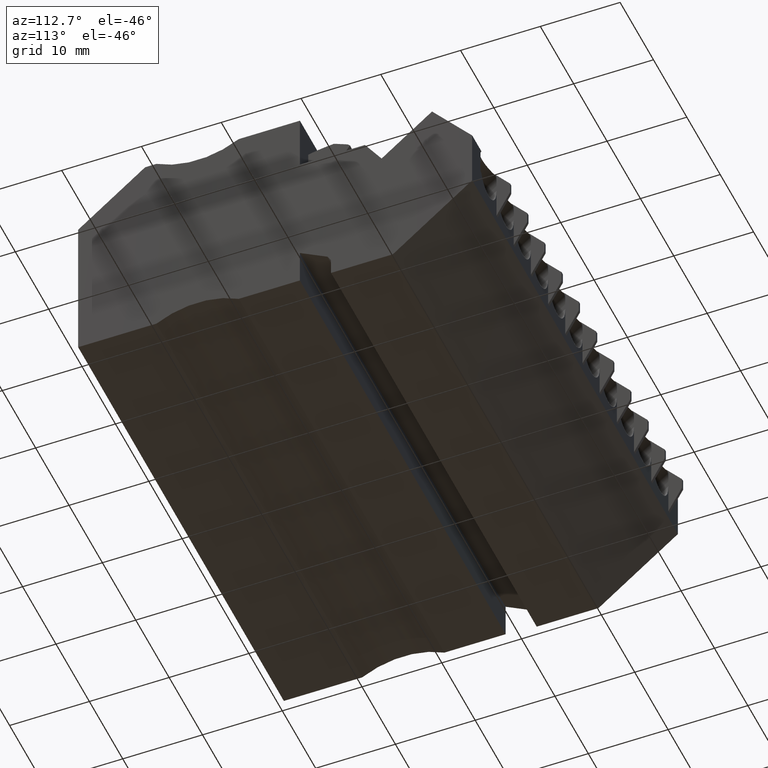
[diagram: clean part render]
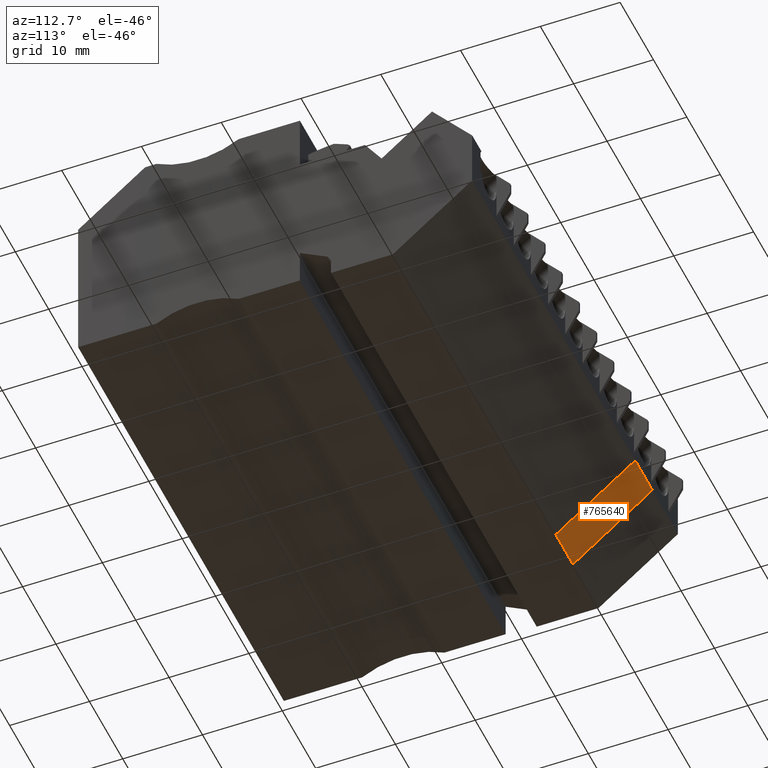
[diagram: same view with one face highlighted and labeled with its STEP entity id]
A machine part, auxiliary view. The second image highlights one B-rep face of the part: STEP entity #765640.
In plain terms, the highlighted planar face has unit normal (0, -0.6428, 0.766).
Its self-contained STEP definition (entity closure, byte-faithful):
#29740=CARTESIAN_POINT('',(469.853158765259,678.981362835314,
68.1199999778021));
#29750=DIRECTION('',(9.53020393934754E-11,4.27434416588531E-10,1.));
#29760=VECTOR('',#29750,1.);
#29770=LINE('',#29740,#29760);
#29800=CARTESIAN_POINT('',(469.85315876575,678.981362837515,
73.2699999917637));
#29810=VERTEX_POINT('',#29800);
#32020=CARTESIAN_POINT('',(469.853158766227,678.981362837916,
73.2699999858219));
#32030=DIRECTION('',(-0.642787608616664,0.766044444016711,
-2.66174790011145E-10));
#32040=DIRECTION('',(0.766044444016711,0.642787608616664,
-7.65167882315017E-10));
#32050=AXIS2_PLACEMENT_3D('',#32020,#32030,#32040);
#32060=PLANE('',#32050);
#38950=CARTESIAN_POINT('',(459.905573340993,670.634347595172,
73.2699999974377));
#38960=VERTEX_POINT('',#38950);
#168470=CARTESIAN_POINT('',(469.85315876624,678.981362839716,
78.4199999917636));
#168480=VERTEX_POINT('',#168470);
#373230=CARTESIAN_POINT('',(447.053267548517,659.849982582306,
78.4200000047688));
#373240=DIRECTION('',(0.766044444016711,0.642787608616664,
-4.36950297394486E-10));
#373250=VECTOR('',#373240,1.);
#373260=LINE('',#373230,#373250);
#373270=CARTESIAN_POINT('',(459.905573340141,670.634347598171,
78.4199999974377));
#373280=VERTEX_POINT('',#373270);
#373290=EDGE_CURVE('',#373280,#168480,#373260,.T.);
#659050=EDGE_CURVE('',#29810,#168480,#29770,.T.);
#765400=ORIENTED_EDGE('',*,*,#659050,.T.);
#765410=CARTESIAN_POINT('',(447.053267548257,659.849982580298,
73.2700000047687));
#765420=DIRECTION('',(0.766044444016711,0.642787608616664,
-4.36950297394486E-10));
#765430=VECTOR('',#765420,1.);
#765440=LINE('',#765410,#765430);
#765450=EDGE_CURVE('',#38960,#29810,#765440,.T.);
#765460=ORIENTED_EDGE('',*,*,#765450,.T.);
#765470=CARTESIAN_POINT('',(459.905573340993,670.634347587358,
73.2700000038368));
#765480=DIRECTION('',(2.48917491584714E-10,5.5633326625038E-10,1.));
#765490=VECTOR('',#765480,1.);
#765500=LINE('',#765470,#765490);
#765510=CARTESIAN_POINT('',(459.905573335703,670.634347588832,
75.9199999847034));
#765520=VERTEX_POINT('',#765510);
#765530=EDGE_CURVE('',#38960,#765520,#765500,.T.);
#765540=ORIENTED_EDGE('',*,*,#765530,.F.);
#765550=CARTESIAN_POINT('',(459.905573333891,670.634347587834,
78.4199999774507));
#765560=DIRECTION('',(-3.51177059947896E-10,-5.0369111157255E-10,-1.));
#765570=VECTOR('',#765560,1.);
#765580=LINE('',#765550,#765570);
#765590=EDGE_CURVE('',#373280,#765520,#765580,.T.);
#765600=ORIENTED_EDGE('',*,*,#765590,.T.);
#765610=ORIENTED_EDGE('',*,*,#373290,.F.);
#765620=EDGE_LOOP('',(#765610,#765600,#765540,#765460,#765400));
#765630=FACE_OUTER_BOUND('',#765620,.T.);
#765640=ADVANCED_FACE('',(#765630),#32060,.F.);